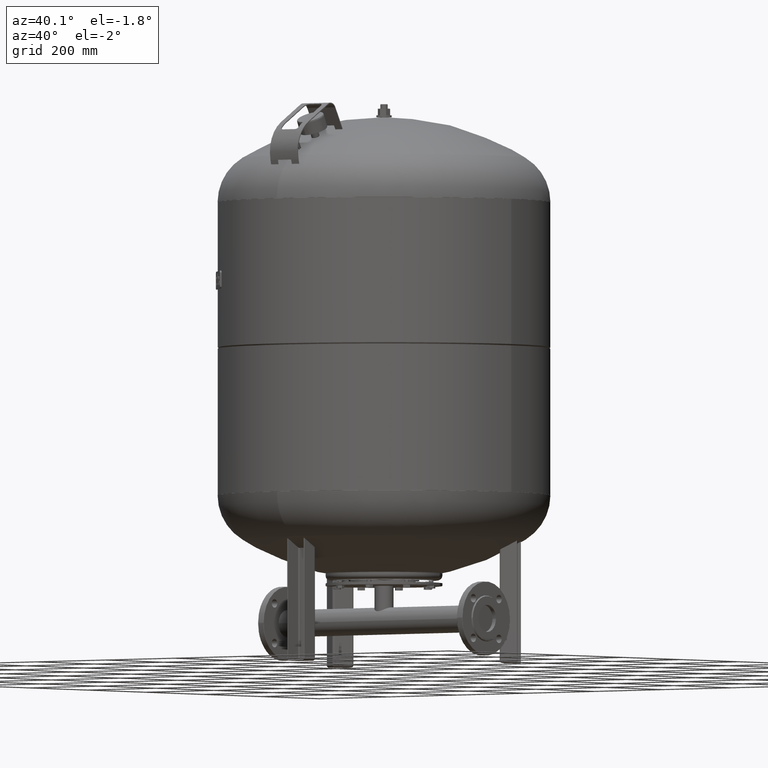
[diagram: clean part render]
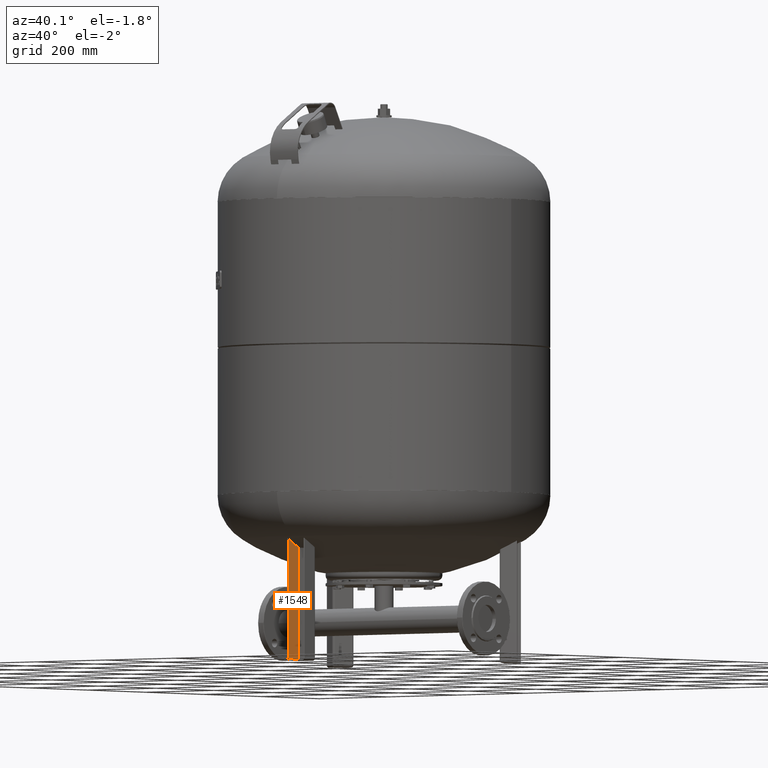
[diagram: same view with one face highlighted and labeled with its STEP entity id]
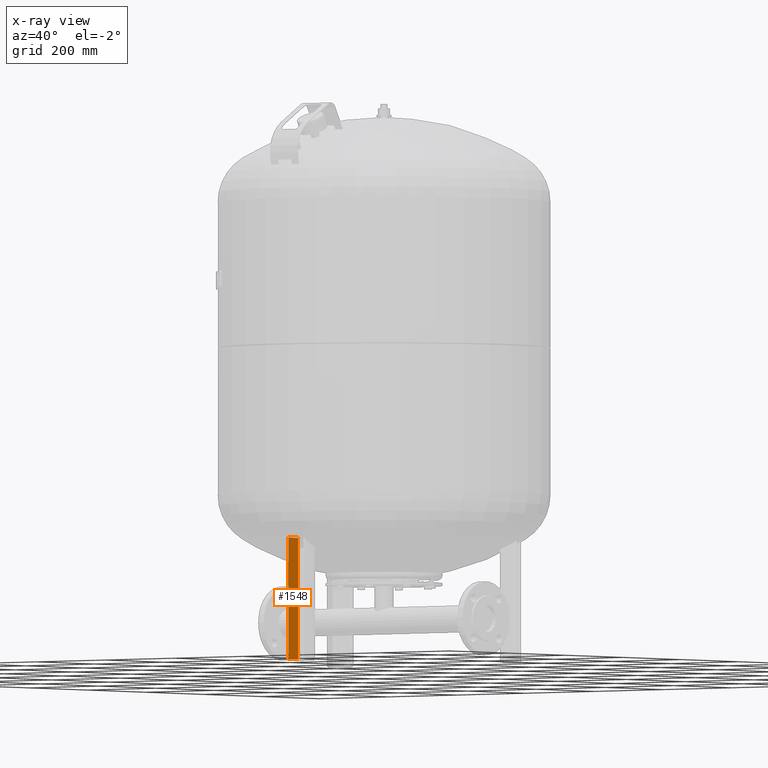
[diagram: x-ray of the same camera — body ghosted, the highlighted face saturated]
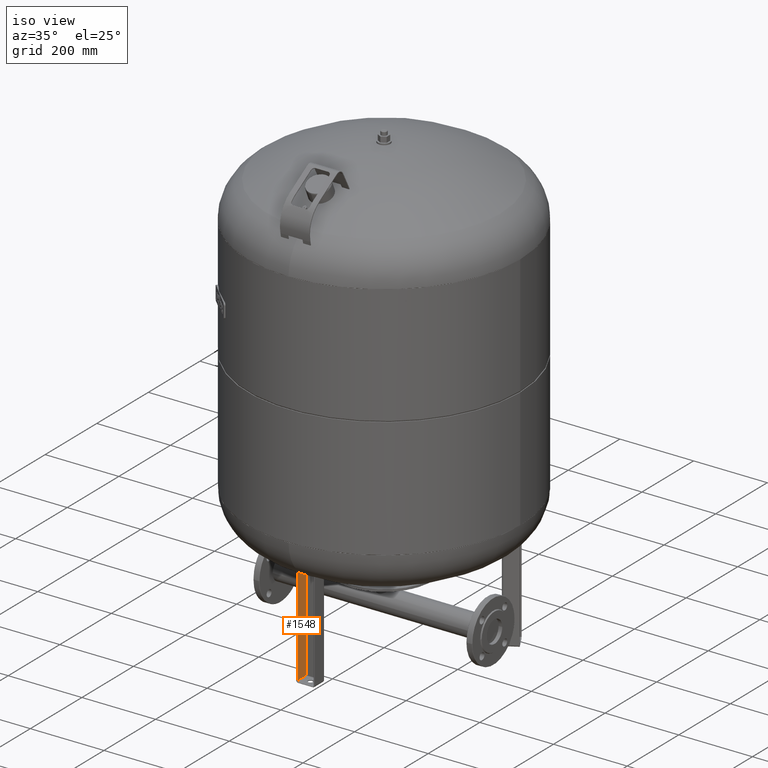
[diagram: same view with one face highlighted and labeled with its STEP entity id]
A machine part, auxiliary view. The second image highlights one B-rep face of the part: STEP entity #1548.
The next image is the same camera in x-ray: the body ghosted, the highlighted face saturated — about 0% of this face is hidden behind the body in this view.
A second angle (iso view) of the same face is appended — the face is thin or edge-on in the first view.
In plain terms, the highlighted planar face has unit normal (-1, 0, 0).
Its self-contained STEP definition (entity closure, byte-faithful):
#1264=CARTESIAN_POINT('',(-22.500000000000007,-304.0,274.0));
#1265=VERTEX_POINT('',#1264);
#1273=CARTESIAN_POINT('',(-22.500000000000004,-270.0,274.0));
#1274=VERTEX_POINT('',#1273);
#1275=CARTESIAN_POINT('',(-22.500000000000004,-270.0,274.0));
#1276=DIRECTION('',(0.0,-1.0,0.0));
#1277=VECTOR('',#1276,34.0);
#1278=LINE('',#1275,#1277);
#1279=EDGE_CURVE('',#1274,#1265,#1278,.T.);
#1464=CARTESIAN_POINT('',(-22.500000000000004,-304.0,4.499999999999996));
#1465=VERTEX_POINT('',#1464);
#1515=CARTESIAN_POINT('',(-22.500000000000004,-304.0,4.499999999999996));
#1516=DIRECTION('',(0.0,0.0,1.0));
#1517=VECTOR('',#1516,269.500000000000000);
#1518=LINE('',#1515,#1517);
#1519=EDGE_CURVE('',#1465,#1265,#1518,.T.);
#1525=CARTESIAN_POINT('',(-22.500000000000000,-305.0,1.999999999999996));
#1526=DIRECTION('',(-1.0,0.0,0.0));
#1527=DIRECTION('',(0.0,-1.0,0.0));
#1528=AXIS2_PLACEMENT_3D('',#1525,#1526,#1527);
#1529=PLANE('',#1528);
#1530=ORIENTED_EDGE('',*,*,#1519,.F.);
#1531=CARTESIAN_POINT('',(-22.500000000000000,-270.0,4.499999999999996));
#1532=VERTEX_POINT('',#1531);
#1533=CARTESIAN_POINT('',(-22.500000000000000,-270.0,4.499999999999996));
#1534=DIRECTION('',(0.0,-1.0,0.0));
#1535=VECTOR('',#1534,34.0);
#1536=LINE('',#1533,#1535);
#1537=EDGE_CURVE('',#1532,#1465,#1536,.T.);
#1538=ORIENTED_EDGE('',*,*,#1537,.F.);
#1539=CARTESIAN_POINT('',(-22.500000000000004,-270.0,274.0));
#1540=DIRECTION('',(0.0,0.0,-1.0));
#1541=VECTOR('',#1540,269.500000000000000);
#1542=LINE('',#1539,#1541);
#1543=EDGE_CURVE('',#1274,#1532,#1542,.T.);
#1544=ORIENTED_EDGE('',*,*,#1543,.F.);
#1545=ORIENTED_EDGE('',*,*,#1279,.T.);
#1546=EDGE_LOOP('',(#1530,#1538,#1544,#1545));
#1547=FACE_OUTER_BOUND('',#1546,.T.);
#1548=ADVANCED_FACE('',(#1547),#1529,.F.);